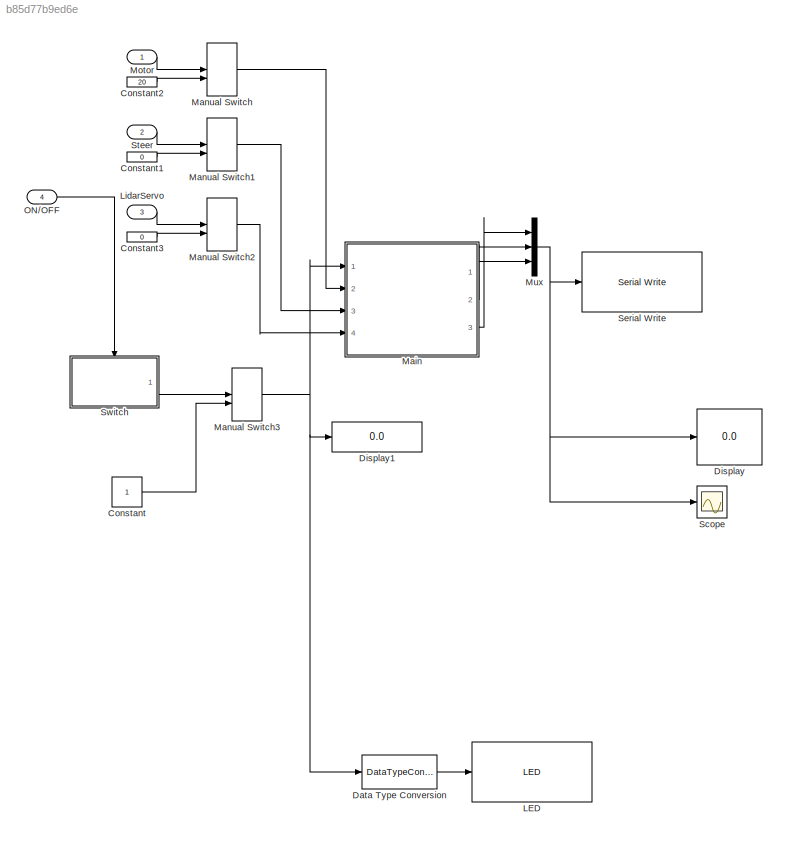
MODEL slx_b85d77b9ed6e
KIND model
CONFIG AbsTol = auto
CONFIG EnableMultiTasking = on
CONFIG FixedStep = 1/40
CONFIG MaxStep = auto
CONFIG MinStep = auto
CONFIG RelTol = 1e-3
CONFIG SampleTimeConstraint = Unconstrained
CONFIG Solver = FixedStepDiscrete
CONFIG SolverName = FixedStepDiscrete
CONFIG StartTime = 0.0
CONFIG StopTime = 5.0
BLOCK [Constant] Constant
BLOCK [Constant] Constant1
  Value = 0
BLOCK [Constant] Constant2
  Value = 20
BLOCK [Constant] Constant3
  Value = 0
BLOCK [DataTypeConversion] Data Type Conversion
  RndMeth = Floor
  SaturateOnIntegerOverflow = off
BLOCK [Display] Display
  Decimation = 1
  Ports = [1]
BLOCK [Display] Display1
  Decimation = 1
  Ports = [1]
BLOCK [Reference] LED  REF=embdlinuxlib/LED
  Ports = [1]
  SourceBlock = embdlinuxlib/LED
  SourceType = LED Write
BLOCK [Inport] LidarServo
  IconDisplay = Port number
  Port = 3
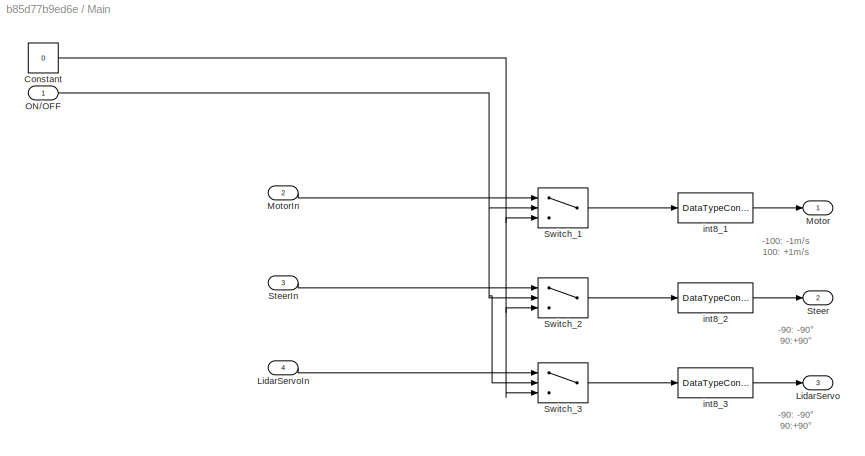
BLOCK [SubSystem] Main
  Ports = [4, 3]
  RequestExecContextInheritance = off
  TreatAsAtomicUnit = on
  Variant = off
BLOCK [Constant] Main/Constant
  Value = 0
BLOCK [Outport] Main/LidarServo
  IconDisplay = Port number
  Port = 3
BLOCK [Inport] Main/LidarServoIn
  IconDisplay = Port number
  Port = 4
BLOCK [Outport] Main/Motor
  IconDisplay = Port number
BLOCK [Inport] Main/MotorIn
  IconDisplay = Port number
  Port = 2
BLOCK [Inport] Main/ON//OFF
  IconDisplay = Port number
BLOCK [Outport] Main/Steer
  IconDisplay = Port number
  Port = 2
BLOCK [Inport] Main/SteerIn 
  IconDisplay = Port number
  Port = 3
BLOCK [Switch] Main/Switch_1
  Criteria = u2 > Threshold
  InputSameDT = off
  SaturateOnIntegerOverflow = off
BLOCK [Switch] Main/Switch_2
  Criteria = u2 > Threshold
  InputSameDT = off
  SaturateOnIntegerOverflow = off
BLOCK [Switch] Main/Switch_3
  Criteria = u2 > Threshold
  InputSameDT = off
  SaturateOnIntegerOverflow = off
BLOCK [DataTypeConversion] Main/int8_1
  OutDataTypeStr = int8
  RndMeth = Floor
  SaturateOnIntegerOverflow = off
BLOCK [DataTypeConversion] Main/int8_2
  OutDataTypeStr = int8
  RndMeth = Floor
  SaturateOnIntegerOverflow = off
BLOCK [DataTypeConversion] Main/int8_3
  OutDataTypeStr = int8
  RndMeth = Floor
  SaturateOnIntegerOverflow = off
BLOCK [ManualSwitch] Manual Switch
  CurrentSetting = 0
BLOCK [ManualSwitch] Manual Switch1
  CurrentSetting = 0
BLOCK [ManualSwitch] Manual Switch2
  CurrentSetting = 0
BLOCK [ManualSwitch] Manual Switch3
  CurrentSetting = 0
BLOCK [Inport] Motor
  IconDisplay = Port number
BLOCK [Mux] Mux
  DisplayOption = bar
  Inputs = 3
  Ports = [3, 1]
BLOCK [Inport] ON//OFF
  IconDisplay = Port number
  Port = 4
BLOCK [Scope] Scope
  NumInputPorts = 1
  Ports = [1]
  ScopeSpecificationString = Simulink.scopes.TimeScopeBlockCfg('CurrentConfiguration', extmgr.ConfigurationSet(extmgr.Configuration('Core','General UI',true),extmgr.Configuration('Core','Source UI',true),extmgr.Configuration('Sources','WiredSimulink',true),extmgr.Configuration('Visuals','Time Domain',true,'SerializedDisplays',{struct('MinYLimReal','-15.5','MaxYLimReal','129.5','YLabelReal','','MinYLimMag','0.00000','MaxYLimMa...<+1358ch>
BLOCK [Reference] Serial Write  REF=raspberrypilib/Serial Write
  Ports = [1]
  SourceBlock = raspberrypilib/Serial Write
  SourceProductBaseCode = RASPPI
  SourceProductName = Simulink Support Package for Raspberry Pi Hardware
  SourceType = Serial Write
BLOCK [Inport] Steer
  IconDisplay = Port number
  Port = 2
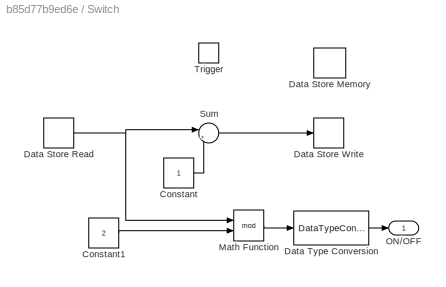
BLOCK [SubSystem] Switch
  Ports = [0, 1, 0, 1]
  RequestExecContextInheritance = off
  TreatAsAtomicUnit = on
  Variant = off
BLOCK [Constant] Switch/Constant
BLOCK [Constant] Switch/Constant1
  Value = 2
BLOCK [DataStoreMemory] Switch/Data Store Memory
  ReadBeforeWriteMsg = warning
  ShowAdditionalParam = off
  WriteAfterReadMsg = warning
  WriteAfterWriteMsg = warning
BLOCK [DataStoreRead] Switch/Data Store Read
  Ports = [0, 1]
BLOCK [DataStoreWrite] Switch/Data Store Write
  Ports = [1]
BLOCK [DataTypeConversion] Switch/Data Type Conversion
  OutDataTypeStr = boolean
  RndMeth = Floor
  SaturateOnIntegerOverflow = off
BLOCK [Math] Switch/Math Function
  Operator = mod
  Ports = [2, 1]
BLOCK [Outport] Switch/ON//OFF
  IconDisplay = Port number
BLOCK [Sum] Switch/Sum
  IconShape = round
  InputSameDT = off
  Inputs = |++
  OutDataTypeStr = Inherit: Inherit via internal rule
  Ports = [2, 1]
  SaturateOnIntegerOverflow = off
BLOCK [TriggerPort] Switch/Trigger
  Ports = []
  StatesWhenEnabling = held
  VariantControl = Variant
ANNOTATION Main: -100: -1m/s 100: +1m/s
ANNOTATION Main: -90: -90 ° 90:+90 °
LINE Constant1:1 -> Manual Switch1:2
LINE Constant2:1 -> Manual Switch:2
LINE Constant3:1 -> Manual Switch2:2
LINE Constant:1 -> Manual Switch3:2
LINE Data Type Conversion:1 -> LED:1
LINE LidarServo:1 -> Manual Switch2:1
NET Main/Constant:1 -> Main/Switch_1:3, Main/Switch_2:3, Main/Switch_3:3
LINE Main/LidarServoIn:1 -> Main/Switch_3:1
LINE Main/MotorIn:1 -> Main/Switch_1:1
NET Main/ON//OFF:1 -> Main/Switch_1:2, Main/Switch_2:2, Main/Switch_3:2
LINE Main/SteerIn :1 -> Main/Switch_2:1
LINE Main/Switch_1:1 -> Main/int8_1:1
LINE Main/Switch_2:1 -> Main/int8_2:1
LINE Main/Switch_3:1 -> Main/int8_3:1
LINE Main/int8_1:1 -> Main/Motor:1
LINE Main/int8_2:1 -> Main/Steer:1
LINE Main/int8_3:1 -> Main/LidarServo:1
LINE Main:1 -> Mux:3
LINE Main:2 -> Mux:2
LINE Main:3 -> Mux:1
LINE Manual Switch1:1 -> Main:3
LINE Manual Switch2:1 -> Main:4
NET Manual Switch3:1 -> Data Type Conversion:1, Display1:1, Main:1
LINE Manual Switch:1 -> Main:2
LINE Motor:1 -> Manual Switch:1
NET Mux:1 -> Display:1, Scope:1, Serial Write:1
LINE ON//OFF:1 -> Switch:trigger
LINE Steer:1 -> Manual Switch1:1
LINE Switch/Constant1:1 -> Switch/Math Function:2
LINE Switch/Constant:1 -> Switch/Sum:2
NET Switch/Data Store Read:1 -> Switch/Math Function:1, Switch/Sum:1
LINE Switch/Data Type Conversion:1 -> Switch/ON//OFF:1
LINE Switch/Math Function:1 -> Switch/Data Type Conversion:1
LINE Switch/Sum:1 -> Switch/Data Store Write:1
LINE Switch:1 -> Manual Switch3:1
note: NET lines group one-source signal fan-out (src -> all destinations, sorted); 1:1 wires keep LINE
